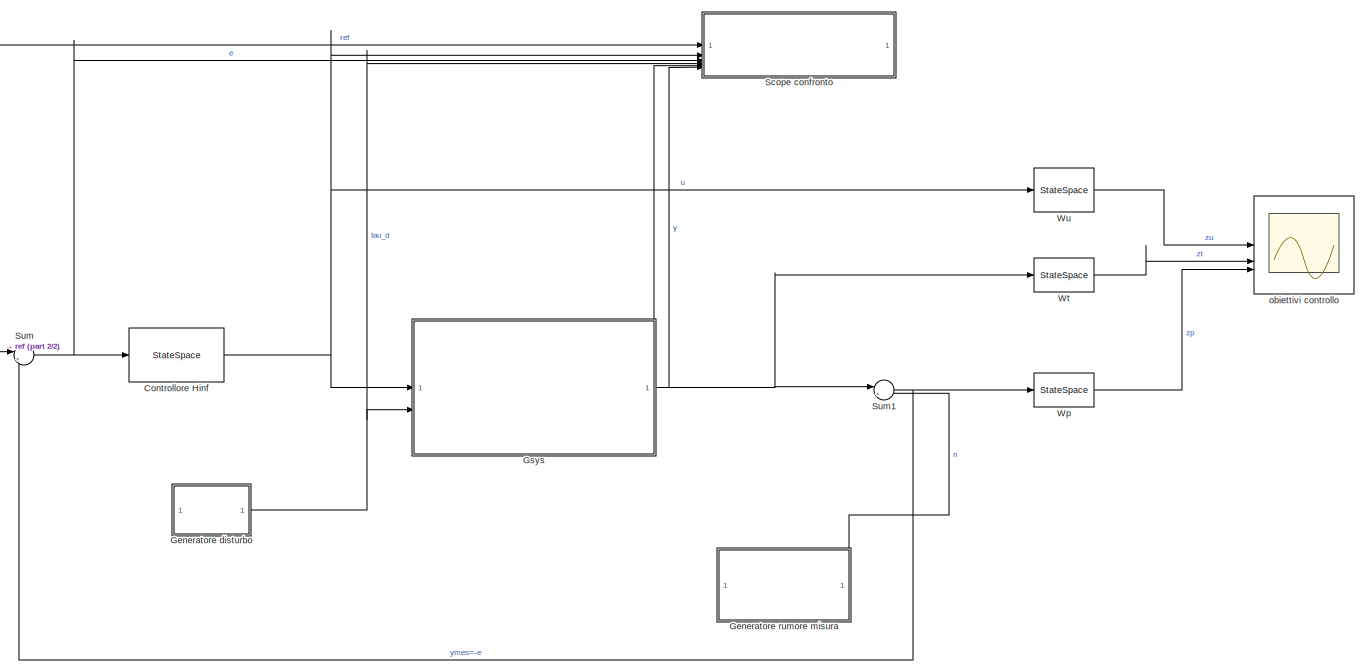
[diagram: root canvas - part 1/2, most of the canvas]
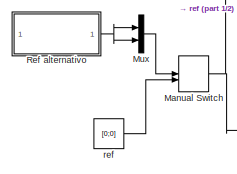
[diagram: root canvas - part 2/2, middle left region]
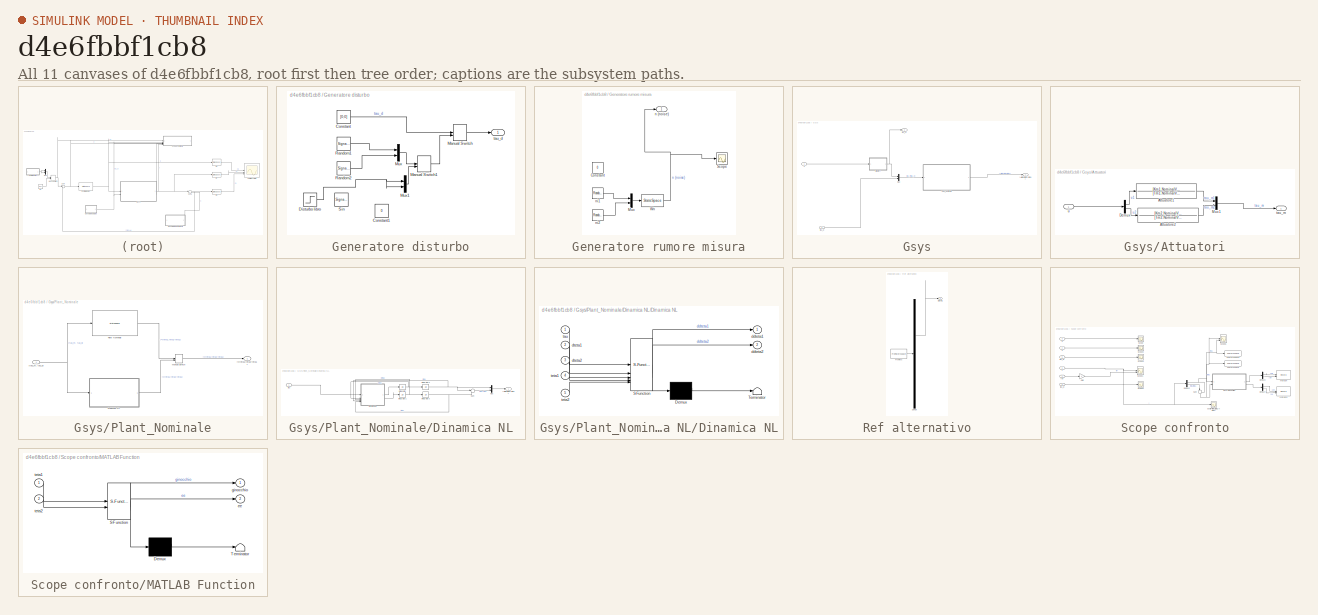
[diagram: thumbnail index - all 11 canvases of the model, root first then tree order]
MODEL slx_d4e6fbbf1cb8
KIND model
CONFIG AbsTol = auto
CONFIG EnableMultiTasking = off
CONFIG FixedStep = auto
CONFIG MaxStep = auto
CONFIG MinStep = auto
CONFIG RelTol = 1e-3
CONFIG SampleTimeConstraint = Unconstrained
CONFIG SolverName = ode113
CONFIG StartTime = 0.0
CONFIG StopTime = 10
BLOCK [StateSpace] Controllore Hinf
  A = ss(Ktf,'min').A
  B = ss(Ktf,'min').B
  C = ss(Ktf,'min').C
  D = ss(Ktf,'min').D
  InitialCondition = 0
BLOCK [SubSystem] Generatore disturbo
BLOCK [Constant] Generatore disturbo/Constant
  Value = [0;0]
BLOCK [Constant] Generatore disturbo/Constant1
  Value = 0
BLOCK [Step] Generatore disturbo/Disturbo libro
  After = 0.1
  SampleTime = 0
BLOCK [ManualSwitch] Generatore disturbo/Manual Switch
  CurrentSetting = 0
BLOCK [ManualSwitch] Generatore disturbo/Manual Switch1
BLOCK [Mux] Generatore disturbo/Mux
  DisplayOption = bar
  Inputs = 2
BLOCK [Mux] Generatore disturbo/Mux1
  DisplayOption = bar
  Inputs = 2
BLOCK [SignalGenerator] Generatore disturbo/Random1
  Amplitude = 100
  Units = rad/sec
  WaveForm = random
BLOCK [SignalGenerator] Generatore disturbo/Random2
  Amplitude = 100
  Units = rad/sec
  WaveForm = random
BLOCK [SignalGenerator] Generatore disturbo/Sin
  Amplitude = 100
  Frequency = 0.5
  Units = rad/sec
BLOCK [Outport] Generatore disturbo/tau_d
BLOCK [SubSystem] Generatore rumore misura
  PortSchema = {"entries":[{"content":{"sides":[{"content":{"connectorIds":[]},"type":"ConnectorPlacement.EquallySpacedRectSide","uuid":"4563afe1-44c1-4b6e-ae92-57a13cb5f2ed"},{"content":{"connectorIds":[],"side":"RIGHT"},"type":"ConnectorPlacement.EquallySpacedRectSide","uuid":"10cf2d49-a755-4040-b0d3-6221591ca79b"},{"content":{"connectorIds":["Out1"],"side":"TOP"},"type":"ConnectorPlacement.EquallySpacedRectSi...<+235ch>
BLOCK [Constant] Generatore rumore misura/Constant
  Value = 0
BLOCK [Mux] Generatore rumore misura/Mux
  DisplayOption = bar
  Inputs = 2
BLOCK [Scope] Generatore rumore misura/Scope
  Floating = off
  NumInputPorts = 1
  ScopeSpecificationString = Simulink.scopes.TimeScopeBlockCfg('CurrentConfiguration', extmgr.ConfigurationSet(extmgr.Configuration('Core','General UI',true),extmgr.Configuration('Core','Source UI',true),extmgr.Configuration('Sources','WiredSimulink',true,'DataLoggingVariableName','ScopeData4'),extmgr.Configuration('Visuals','Time Domain',true,'SerializedDisplays',{struct('MinYLimReal','-0.00025','MaxYLimReal','0.00021','YLab...<+1415ch>
BLOCK [StateSpace] Generatore rumore misura/Wn
  A = ss(Wn).A
  B = ss(Wn).B
  C = ss(Wn).C
  D = ss(Wn).D
  InitialCondition = 0
BLOCK [Outport] Generatore rumore misura/n (noise)
BLOCK [RandomNumber] Generatore rumore misura/ni1
  SampleTime = 0.1
  Variance = 0.03^2
BLOCK [RandomNumber] Generatore rumore misura/ni2
  SampleTime = 0.1
  Variance = 0.03^2
BLOCK [SubSystem] Gsys
  PortSchema = {"entries":[{"content":{"sides":[{"content":{"connectorIds":["In1","In2"]},"type":"ConnectorPlacement.EquallySpacedRectSide","uuid":"18d893e1-8e34-4961-b34b-b4b9a69ed5ee"},{"content":{"connectorIds":["Out1"],"side":"RIGHT"},"type":"ConnectorPlacement.EquallySpacedRectSide","uuid":"8adab429-5027-4e99-8f69-c72e15093695"},{"content":{"connectorIds":["Out2"],"side":"TOP"},"type":"ConnectorPlacement.Eq...<+252ch>
BLOCK [SubSystem] Gsys/Attuatori
BLOCK [TransferFcn] Gsys/Attuatori/Attuatore1
  Denominator = [Tm1.NominalValue  1]
  Numerator = [Km1.NominalValue]
BLOCK [TransferFcn] Gsys/Attuatori/Attuatore2
  Denominator = [Tm2.NominalValue  1]
  Numerator = [Km2.NominalValue]
BLOCK [Demux] Gsys/Attuatori/Demux
  Outputs = 2
BLOCK [Mux] Gsys/Attuatori/Mux1
  DisplayOption = bar
  Inputs = 2
BLOCK [Outport] Gsys/Attuatori/tau_m
BLOCK [Inport] Gsys/Attuatori/u
BLOCK [Mux] Gsys/Mux
  DisplayOption = bar
  Inputs = 2
BLOCK [SubSystem] Gsys/Plant_Nominale
BLOCK [SubSystem] Gsys/Plant_Nominale/Dinamica NL
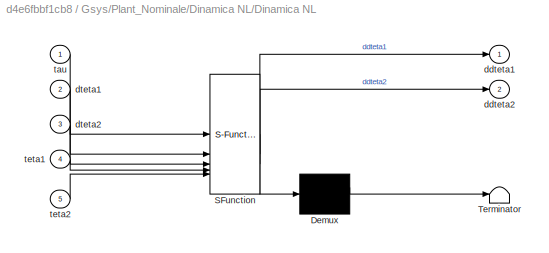
BLOCK [SubSystem] Gsys/Plant_Nominale/Dinamica NL/Dinamica NL
  ErrorFcn = Stateflow.Translate.translate
  LibrarySourceBlock = simulink/User-Defined\nFunctions/MATLAB Function
  PermitHierarchicalResolution = ExplicitOnly
  SFBlockType = MATLAB Function
  TreatAsAtomicUnit = on
BLOCK [Demux] Gsys/Plant_Nominale/Dinamica NL/Dinamica NL/ Demux 
  Outputs = 1
BLOCK [S-Function] Gsys/Plant_Nominale/Dinamica NL/Dinamica NL/ SFunction 
  EnableBusSupport = on
  FunctionName = sf_sfun
  Parameters = I1,I2,M1,M2,c1,c2,g,l1,l2
  PortCounts = [5 3]
  SFcnIsStateOwnerBlock = off
  SFunctionDeploymentMode = off
  Tag = Stateflow S-Function 2
BLOCK [Terminator] Gsys/Plant_Nominale/Dinamica NL/Dinamica NL/ Terminator 
BLOCK [Outport] Gsys/Plant_Nominale/Dinamica NL/Dinamica NL/ddteta1
BLOCK [Outport] Gsys/Plant_Nominale/Dinamica NL/Dinamica NL/ddteta2
  Port = 2
BLOCK [Inport] Gsys/Plant_Nominale/Dinamica NL/Dinamica NL/dteta1
  Port = 2
BLOCK [Inport] Gsys/Plant_Nominale/Dinamica NL/Dinamica NL/dteta2
  Port = 3
BLOCK [Inport] Gsys/Plant_Nominale/Dinamica NL/Dinamica NL/tau
BLOCK [Inport] Gsys/Plant_Nominale/Dinamica NL/Dinamica NL/teta1
  Port = 4
BLOCK [Inport] Gsys/Plant_Nominale/Dinamica NL/Dinamica NL/teta2
  Port = 5
BLOCK [Integrator] Gsys/Plant_Nominale/Dinamica NL/Integrator
  InitialCondition = dteta0(1)
BLOCK [Integrator] Gsys/Plant_Nominale/Dinamica NL/Integrator1
  InitialCondition = dteta0(2)
BLOCK [Integrator] Gsys/Plant_Nominale/Dinamica NL/Integrator2
  InitialCondition = teta0(1)
BLOCK [Integrator] Gsys/Plant_Nominale/Dinamica NL/Integrator3
  InitialCondition = teta0(2)
BLOCK [Mux] Gsys/Plant_Nominale/Dinamica NL/Mux
  DisplayOption = bar
  Inputs = 2
BLOCK [Sum] Gsys/Plant_Nominale/Dinamica NL/Sum
  Inputs = |-+
BLOCK [Inport] Gsys/Plant_Nominale/Dinamica NL/tau
BLOCK [Outport] Gsys/Plant_Nominale/Dinamica NL/y=[teta1;teta2-teta1]
BLOCK [ManualSwitch] Gsys/Plant_Nominale/Manual Switch
  CurrentSetting = 0
BLOCK [StateSpace] Gsys/Plant_Nominale/Plant Nominale
  A = Plant.NominalValue.A
  B = Plant.NominalValue.B
  C = Plant.NominalValue.C
  D = Plant.NominalValue.D
  InitialCondition = cond_iniz
BLOCK [Inport] Gsys/Plant_Nominale/[tau_m; tau_d]
BLOCK [Outport] Gsys/Plant_Nominale/y=[teta1;teta2-teta1]
BLOCK [Inport] Gsys/tau_d
  Port = 2
BLOCK [Outport] Gsys/tau_m
  Port = 2
BLOCK [Inport] Gsys/u
BLOCK [Outport] Gsys/y=[teta1;teta2-teta1]
BLOCK [ManualSwitch] Manual Switch
  CurrentSetting = 0
BLOCK [Mux] Mux
  DisplayOption = bar
  Inputs = 2
BLOCK [SubSystem] Ref alternativo
  ClipboardFcn = sigbuilder_block('clipboard');
  CloseFcn = sigbuilder_block('close');
  ContinueFcn = sigbuilder_block('continue');
  CopyFcn = sigbuilder_block('copy');
  DeleteFcn = sigbuilder_block('delete');
  LoadFcn = sigbuilder_block('load');
  MaskHideContents = on
  ModelCloseFcn = sigbuilder_block('modelClose');
  NameChangeFcn = sigbuilder_block('namechange');
  OpenFcn = sigbuilder_block('open',[5.4 36 1141.2 516.6 ]);
  PauseFcn = sigbuilder_block('pause');
  PreSaveFcn = sigbuilder_block('preSave');
  StartFcn = sigbuilder_block('start');
  StopFcn = sigbuilder_block('stop');
  Tag = STV Subsys
BLOCK [Demux] Ref alternativo/Demux
  DisplayOption = none
  Outputs = 1
  Tag = STV Demux
BLOCK [FromWorkspace] Ref alternativo/FromWs
  Tag = STV FromWs
  VariableName = tuvar
BLOCK [Outport] Ref alternativo/Signal 1
  Tag = STV Outport
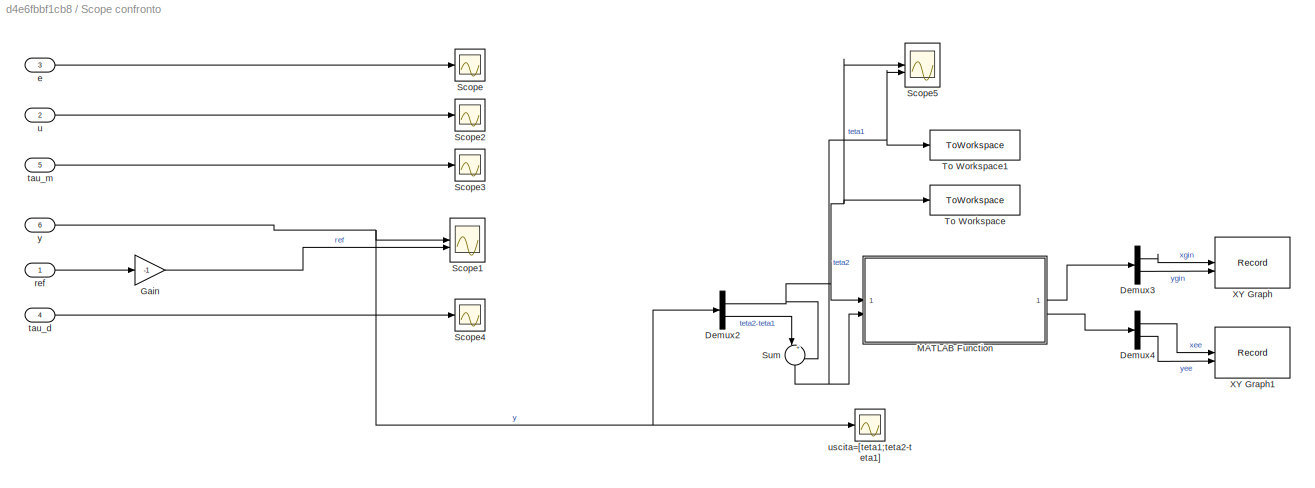
BLOCK [SubSystem] Scope confronto
BLOCK [Demux] Scope confronto/Demux2
  Outputs = 2
BLOCK [Demux] Scope confronto/Demux3
  Outputs = 2
BLOCK [Demux] Scope confronto/Demux4
  Outputs = 2
BLOCK [Gain] Scope confronto/Gain
  Gain = -1
BLOCK [SubSystem] Scope confronto/MATLAB Function
  ErrorFcn = Stateflow.Translate.translate
  LibrarySourceBlock = simulink/User-Defined\nFunctions/MATLAB Function
  PermitHierarchicalResolution = ExplicitOnly
  SFBlockType = MATLAB Function
  TreatAsAtomicUnit = on
BLOCK [Demux] Scope confronto/MATLAB Function/ Demux 
  Outputs = 1
BLOCK [S-Function] Scope confronto/MATLAB Function/ SFunction 
  EnableBusSupport = on
  FunctionName = sf_sfun
  PortCounts = [2 3]
  SFcnIsStateOwnerBlock = off
  SFunctionDeploymentMode = off
  Tag = Stateflow S-Function 1
BLOCK [Terminator] Scope confronto/MATLAB Function/ Terminator 
BLOCK [Outport] Scope confronto/MATLAB Function/ee
  Port = 2
BLOCK [Outport] Scope confronto/MATLAB Function/ginocchio
BLOCK [Inport] Scope confronto/MATLAB Function/teta1
BLOCK [Inport] Scope confronto/MATLAB Function/teta2
  Port = 2
BLOCK [Scope] Scope confronto/Scope
  Floating = off
  NumInputPorts = 1
  ScopeSpecificationString = Simulink.scopes.TimeScopeBlockCfg('CurrentConfiguration', extmgr.ConfigurationSet(extmgr.Configuration('Core','General UI',true),extmgr.Configuration('Core','Source UI',true),extmgr.Configuration('Sources','WiredSimulink',true,'DataLoggingVariableName','ScopeData1'),extmgr.Configuration('Visuals','Time Domain',true,'SerializedDisplays',{struct('MinYLimReal','-0.00662','MaxYLimReal','0.00142','YLab...<+1414ch>
BLOCK [Scope] Scope confronto/Scope1
  Floating = off
  NumInputPorts = 2
  ScopeSpecificationString = Simulink.scopes.TimeScopeBlockCfg('CurrentConfiguration', extmgr.ConfigurationSet(extmgr.Configuration('Core','General UI',true),extmgr.Configuration('Core','Source UI',true),extmgr.Configuration('Sources','WiredSimulink',true,'DataLoggingVariableName','ScopeData2'),extmgr.Configuration('Visuals','Time Domain',true,'SerializedDisplays',{struct('MinYLimReal','-2.02596','MaxYLimReal','1.09801','YLab...<+1464ch>
BLOCK [Scope] Scope confronto/Scope2
  Floating = off
  NumInputPorts = 1
  ScopeSpecificationString = Simulink.scopes.TimeScopeBlockCfg('CurrentConfiguration', extmgr.ConfigurationSet(extmgr.Configuration('Core','General UI',true),extmgr.Configuration('Core','Source UI',true),extmgr.Configuration('Sources','WiredSimulink',true,'DataLoggingVariableName','ScopeData3'),extmgr.Configuration('Visuals','Time Domain',true,'SerializedDisplays',{struct('MinYLimReal','-147.6398','MaxYLimReal','138.63763','Y...<+1566ch>
BLOCK [Scope] Scope confronto/Scope3
  Floating = off
  NumInputPorts = 1
  ScopeSpecificationString = Simulink.scopes.TimeScopeBlockCfg('CurrentConfiguration', extmgr.ConfigurationSet(extmgr.Configuration('Core','General UI',true),extmgr.Configuration('Core','Source UI',true),extmgr.Configuration('Sources','WiredSimulink',true,'DataLoggingVariableName','ScopeData1'),extmgr.Configuration('Visuals','Time Domain',true,'SerializedDisplays',{struct('MinYLimReal','-45.049','MaxYLimReal','41.78252','YLab...<+1465ch>
BLOCK [Scope] Scope confronto/Scope4
  Floating = off
  NumInputPorts = 1
  ScopeSpecificationString = Simulink.scopes.TimeScopeBlockCfg('CurrentConfiguration', extmgr.ConfigurationSet(extmgr.Configuration('Core','General UI',true),extmgr.Configuration('Core','Source UI',true),extmgr.Configuration('Sources','WiredSimulink',true,'DataLoggingVariableName','ScopeData2'),extmgr.Configuration('Visuals','Time Domain',true,'SerializedDisplays',{struct('MinYLimReal','-0.125','MaxYLimReal','0.125','YLabelRe...<+1436ch>
BLOCK [Scope] Scope confronto/Scope5
  Floating = off
  NumInputPorts = 2
  ScopeSpecificationString = Simulink.scopes.TimeScopeBlockCfg('CurrentConfiguration', extmgr.ConfigurationSet(extmgr.Configuration('Core','General UI',true),extmgr.Configuration('Core','Source UI',true),extmgr.Configuration('Sources','WiredSimulink',true,'DataLoggingVariableName','ScopeData1'),extmgr.Configuration('Visuals','Time Domain',true,'SerializedDisplays',{struct('MinYLimReal','-0.00108','MaxYLimReal','0.00108','YLab...<+1450ch>
BLOCK [Sum] Scope confronto/Sum
  Inputs = |++
  NameLocation = right
BLOCK [ToWorkspace] Scope confronto/To Workspace
  FixptAsFi = on
  MaxDataPoints = inf
  SampleTime = 0.001
  SaveFormat = Timeseries
  VariableName = teta1
BLOCK [ToWorkspace] Scope confronto/To Workspace1
  FixptAsFi = on
  MaxDataPoints = inf
  SampleTime = 0.001
  SaveFormat = Timeseries
  VariableName = teta2
BLOCK [Record] Scope confronto/XY Graph
  CompatibilityTag = XY
  FileSettingsInternal = {"entries":[{"content":{"excelSettings":{"content":{},"type":"Streamout.ExcelSettings"}},"type":"Streamout.FileSettingStorage","uuid":"d28b810d-8f5e-49bf-8304-745c967aae85"}],"packageUris":["http://schema.mathworks.com/mf0/streamout_blocks/R2020a"],"version":"1.0"}
  Layout = [1 1]
  SignalsInternal = {"entries":[{"content":{"signals":[{"content":{"blockPath":["Controllore_Hinf/Scope confronto/XY Graph"],"channel":[],"dimensions":[1,1],"domain":"Controllore_Hinf/Scope confronto/XY Graph","lineColor":"#edb120","plots":[1],"port":1,"sid":[""],"signalID":3957,"signalName":"xgin"},"type":"RecordBlkView.Signal","uuid":"8076e5f7-8ed5-48cf-9b82-05484cb4dd0f"},{"content":{"blockPath":["Controllore_Hinf...<+457ch>
  VisualizationBindings = {"sparklinesplugin":{"info":[{"bindingParametersList":[],"subplotID":1}]}}
BLOCK [Record] Scope confronto/XY Graph1
  CompatibilityTag = XY
  FileSettingsInternal = {"entries":[{"content":{"excelSettings":{"content":{},"type":"Streamout.ExcelSettings"}},"type":"Streamout.FileSettingStorage","uuid":"866a8769-9de0-469a-acad-6cec99dd1763"}],"packageUris":["http://schema.mathworks.com/mf0/streamout_blocks/R2020a"],"version":"1.0"}
  Layout = [1 1]
  SignalsInternal = {"entries":[{"content":{"signals":[{"content":{"blockPath":["Controllore_Hinf/Scope confronto/XY Graph1"],"channel":[],"dimensions":[1,1],"domain":"Controllore_Hinf/Scope confronto/XY Graph1","lineColor":"#77ac30","plots":[1],"port":1,"sid":[""],"signalID":3965,"signalName":"xee"},"type":"RecordBlkView.Signal","uuid":"24aef917-77c4-4924-9836-a8d9a3bdd47d"},{"content":{"blockPath":["Controllore_Hin...<+459ch>
  VisualizationBindings = {"sparklinesplugin":{"info":[{"bindingParametersList":[],"subplotID":1}]}}
BLOCK [Inport] Scope confronto/e
  Port = 3
BLOCK [Inport] Scope confronto/ref
BLOCK [Inport] Scope confronto/tau_d
  Port = 4
BLOCK [Inport] Scope confronto/tau_m
  Port = 5
BLOCK [Inport] Scope confronto/u
  Port = 2
BLOCK [Scope] Scope confronto/uscita=[teta1;teta2-teta1]
  Floating = off
  NumInputPorts = 1
  ScopeSpecificationString = Simulink.scopes.TimeScopeBlockCfg('CurrentConfiguration', extmgr.ConfigurationSet(extmgr.Configuration('Core','General UI',true),extmgr.Configuration('Core','Source UI',true),extmgr.Configuration('Sources','WiredSimulink',true,'DataLoggingVariableName','ScopeData1'),extmgr.Configuration('Visuals','Time Domain',true,'SerializedDisplays',{struct('MinYLimReal','-1.01891','MaxYLimReal','0.98523','YLab...<+1414ch>
BLOCK [Inport] Scope confronto/y
  Port = 6
BLOCK [Sum] Sum
  Inputs = |++
BLOCK [Sum] Sum1
  Inputs = |++
BLOCK [StateSpace] Wp
  A = ss(Wp,'min').A
  B = ss(Wp,'min').B
  C = ss(Wp,'min').C
  D = ss(Wp,'min').D
  InitialCondition = 0
BLOCK [StateSpace] Wt
  A = ss(Wt,'min').A
  B = ss(Wt,'min').B
  C = ss(Wt,'min').C
  D = ss(Wt,'min').D
  InitialCondition = 0
BLOCK [StateSpace] Wu
  A = ss(Wu,'min').A
  B = ss(Wu,'min').B
  C = ss(Wu,'min').C
  D = ss(Wu,'min').D
  InitialCondition = 0
BLOCK [Scope] obiettivi controllo
  Floating = off
  NumInputPorts = 3
  ScopeSpecificationString = Simulink.scopes.TimeScopeBlockCfg('CurrentConfiguration', extmgr.ConfigurationSet(extmgr.Configuration('Core','General UI',true),extmgr.Configuration('Core','Source UI',true),extmgr.Configuration('Sources','WiredSimulink',true),extmgr.Configuration('Visuals','Time Domain',true,'SerializedDisplays',{struct('MinYLimReal','-0.25503','MaxYLimReal','0.20136','YLabelReal','','MinYLimMag','0.00000','MaxY...<+1407ch>
BLOCK [Constant] ref
  Value = [0;0]
NET Controllore Hinf:1 -> Gsys:1, Scope confronto:2, Wu:1
LINE Generatore disturbo/Constant:1 -> Generatore disturbo/Manual Switch:1
NET Generatore disturbo/Disturbo libro:1 -> Generatore disturbo/Mux1:1, Generatore disturbo/Mux1:2
LINE Generatore disturbo/Manual Switch1:1 -> Generatore disturbo/Manual Switch:2
LINE Generatore disturbo/Manual Switch:1 -> Generatore disturbo/tau_d:1
LINE Generatore disturbo/Mux1:1 -> Generatore disturbo/Manual Switch1:2
LINE Generatore disturbo/Mux:1 -> Generatore disturbo/Manual Switch1:1
LINE Generatore disturbo/Random1:1 -> Generatore disturbo/Mux:1
LINE Generatore disturbo/Random2:1 -> Generatore disturbo/Mux:2
NET Generatore disturbo:1 -> Gsys:2, Scope confronto:4
LINE Generatore rumore misura/Mux:1 -> Generatore rumore misura/Wn:1
NET Generatore rumore misura/Wn:1 -> Generatore rumore misura/Scope:1, Generatore rumore misura/n (noise):1
LINE Generatore rumore misura/ni1:1 -> Generatore rumore misura/Mux:1
LINE Generatore rumore misura/ni2:1 -> Generatore rumore misura/Mux:2
LINE Generatore rumore misura:1 -> Sum1:2
LINE Gsys/Attuatori/Attuatore1:1 -> Gsys/Attuatori/Mux1:1
LINE Gsys/Attuatori/Attuatore2:1 -> Gsys/Attuatori/Mux1:2
LINE Gsys/Attuatori/Demux:1 -> Gsys/Attuatori/Attuatore1:1
LINE Gsys/Attuatori/Demux:2 -> Gsys/Attuatori/Attuatore2:1
LINE Gsys/Attuatori/Mux1:1 -> Gsys/Attuatori/tau_m:1
LINE Gsys/Attuatori/u:1 -> Gsys/Attuatori/Demux:1
NET Gsys/Attuatori:1 -> Gsys/Mux:1, Gsys/tau_m:1
LINE Gsys/Mux:1 -> Gsys/Plant_Nominale:1
LINE Gsys/Plant_Nominale/Dinamica NL/Dinamica NL:1 -> Gsys/Plant_Nominale/Dinamica NL/Integrator:1
LINE Gsys/Plant_Nominale/Dinamica NL/Dinamica NL:2 -> Gsys/Plant_Nominale/Dinamica NL/Integrator1:1
NET Gsys/Plant_Nominale/Dinamica NL/Integrator1:1 -> Gsys/Plant_Nominale/Dinamica NL/Dinamica NL:3, Gsys/Plant_Nominale/Dinamica NL/Integrator3:1
NET Gsys/Plant_Nominale/Dinamica NL/Integrator2:1 -> Gsys/Plant_Nominale/Dinamica NL/Dinamica NL:4, Gsys/Plant_Nominale/Dinamica NL/Mux:1, Gsys/Plant_Nominale/Dinamica NL/Sum:1
NET Gsys/Plant_Nominale/Dinamica NL/Integrator3:1 -> Gsys/Plant_Nominale/Dinamica NL/Dinamica NL:5, Gsys/Plant_Nominale/Dinamica NL/Sum:2
NET Gsys/Plant_Nominale/Dinamica NL/Integrator:1 -> Gsys/Plant_Nominale/Dinamica NL/Dinamica NL:2, Gsys/Plant_Nominale/Dinamica NL/Integrator2:1
LINE Gsys/Plant_Nominale/Dinamica NL/Mux:1 -> Gsys/Plant_Nominale/Dinamica NL/y=[teta1;teta2-teta1]:1
LINE Gsys/Plant_Nominale/Dinamica NL/Sum:1 -> Gsys/Plant_Nominale/Dinamica NL/Mux:2
LINE Gsys/Plant_Nominale/Dinamica NL/tau:1 -> Gsys/Plant_Nominale/Dinamica NL/Dinamica NL:1
LINE Gsys/Plant_Nominale/Dinamica NL:1 -> Gsys/Plant_Nominale/Manual Switch:2
LINE Gsys/Plant_Nominale/Manual Switch:1 -> Gsys/Plant_Nominale/y=[teta1;teta2-teta1]:1
LINE Gsys/Plant_Nominale/Plant Nominale:1 -> Gsys/Plant_Nominale/Manual Switch:1
NET Gsys/Plant_Nominale/[tau_m; tau_d]:1 -> Gsys/Plant_Nominale/Dinamica NL:1, Gsys/Plant_Nominale/Plant Nominale:1
LINE Gsys/Plant_Nominale:1 -> Gsys/y=[teta1;teta2-teta1]:1
LINE Gsys/tau_d:1 -> Gsys/Mux:2
LINE Gsys/u:1 -> Gsys/Attuatori:1
NET Gsys:1 -> Scope confronto:6, Sum1:1, Wt:1
LINE Gsys:2 -> Scope confronto:5
NET Manual Switch:1 -> Scope confronto:1, Sum:1
LINE Mux:1 -> Manual Switch:1
NET Ref alternativo:1 -> Mux:1, Mux:2
NET Scope confronto/Demux2:1 -> Scope confronto/MATLAB Function:1, Scope confronto/Scope5:1, Scope confronto/Sum:2, Scope confronto/To Workspace:1
LINE Scope confronto/Demux2:2 -> Scope confronto/Sum:1
LINE Scope confronto/Demux3:1 -> Scope confronto/XY Graph:1
LINE Scope confronto/Demux3:2 -> Scope confronto/XY Graph:2
LINE Scope confronto/Demux4:1 -> Scope confronto/XY Graph1:1
LINE Scope confronto/Demux4:2 -> Scope confronto/XY Graph1:2
LINE Scope confronto/Gain:1 -> Scope confronto/Scope1:2
LINE Scope confronto/MATLAB Function:1 -> Scope confronto/Demux3:1
LINE Scope confronto/MATLAB Function:2 -> Scope confronto/Demux4:1
NET Scope confronto/Sum:1 -> Scope confronto/MATLAB Function:2, Scope confronto/Scope5:2, Scope confronto/To Workspace1:1
LINE Scope confronto/e:1 -> Scope confronto/Scope:1
LINE Scope confronto/ref:1 -> Scope confronto/Gain:1
LINE Scope confronto/tau_d:1 -> Scope confronto/Scope4:1
LINE Scope confronto/tau_m:1 -> Scope confronto/Scope3:1
LINE Scope confronto/u:1 -> Scope confronto/Scope2:1
NET Scope confronto/y:1 -> Scope confronto/Demux2:1, Scope confronto/Scope1:1, Scope confronto/uscita=[teta1;teta2-teta1]:1
NET Sum1:1 -> Sum:2, Wp:1
NET Sum:1 -> Controllore Hinf:1, Scope confronto:3
LINE Wp:1 -> obiettivi controllo:3
LINE Wt:1 -> obiettivi controllo:2
LINE Wu:1 -> obiettivi controllo:1
LINE ref:1 -> Manual Switch:2
note: NET lines group one-source signal fan-out (src -> all destinations, sorted); 1:1 wires keep LINE
CHART Scope confronto/MATLAB Function states=1 transitions=1
  STATE_LABEL 'eML_blk_kernel()'
  STATE_LABEL 'SCRIPT:\nfunction [ginocchio,ee] = fcn(teta1,teta2)\nl1=0.5;l2=0.4;\nginocchio=[l1*sin(teta1);\n           l1*cos(teta1)];\nee=ginocchio+[l2*sin(teta2);\n           l2*cos(teta2)];\nend\n'
CHART Gsys/Plant_Nominale/Dinamica NL/Dinamica NL states=1 transitions=1
  STATE_LABEL 'eML_blk_kernel()'
  STATE_LABEL 'SCRIPT:\nfunction [ddteta1,ddteta2]=dinamicaNL(tau,dteta1,dteta2,teta1,teta2,I1, I2, M1, M2, l1, l2, c1, c2, g)\nh1nom=0.35;\nh2nom=0.181;\ntau_m=tau(1:2);tau_d=tau(3:4);\ndteta=[dteta1;dteta2];\nM=[I1+M1*h1nom^2+M2*l1^2  l1*M2*cos(teta1-teta2);\n    l1*M2*cos(teta1-teta2)  I2+M2*h2nom^2];\nN=[c1+c2  -c2;\n    -c2  c2];\nq=[l1*M2*sin(teta1-teta2)*dteta2^2-M1*g*sin(teta1)\n    l1*M2*sin(teta1-teta2)*dteta1^2-...<+142ch>'
CHART  states=0 transitions=0
CHART  states=0 transitions=0
